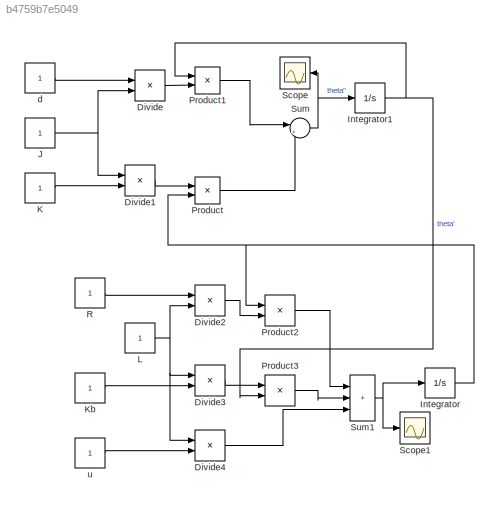
MODEL slx_b4759b7e5049
KIND model
CONFIG AbsTol = auto
CONFIG EnableMultiTasking = off
CONFIG FixedStep = auto
CONFIG MaxStep = auto
CONFIG MinStep = auto
CONFIG RelTol = 1e-3
CONFIG SampleTimeConstraint = Unconstrained
CONFIG SolverName = VariableStepAuto
CONFIG StartTime = 0.0
CONFIG StopTime = 10.0
BLOCK [Product] Divide
  Inputs = */
  Ports = [2, 1]
BLOCK [Product] Divide1
  Inputs = /*
  Ports = [2, 1]
BLOCK [Product] Divide2
  Inputs = */
  Ports = [2, 1]
BLOCK [Product] Divide3
  Inputs = /*
  Ports = [2, 1]
BLOCK [Product] Divide4
  Inputs = /*
  Ports = [2, 1]
BLOCK [Integrator] Integrator
  Ports = [1, 1]
BLOCK [Integrator] Integrator1
  Ports = [1, 1]
BLOCK [Constant] J
BLOCK [Constant] K
BLOCK [Constant] Kb
BLOCK [Constant] L
BLOCK [Product] Product
  Ports = [2, 1]
BLOCK [Product] Product1
  Ports = [2, 1]
BLOCK [Product] Product2
  Ports = [2, 1]
BLOCK [Product] Product3
  Ports = [2, 1]
BLOCK [Constant] R
BLOCK [Scope] Scope
  Floating = off
  NumInputPorts = 1
  Ports = [1]
  ScopeSpecificationString = Simulink.scopes.TimeScopeBlockCfg('CurrentConfiguration', extmgr.ConfigurationSet(extmgr.Configuration('Core','General UI',true),extmgr.Configuration('Core','Source UI',true),extmgr.Configuration('Sources','WiredSimulink',true),extmgr.Configuration('Visuals','Time Domain',true,'SerializedDisplays',{struct('MinYLimReal','-30323618.49334','MaxYLimReal','272912566.4401','YLabelReal','','MinYLimMag','...<+1380ch>
BLOCK [Scope] Scope1
  Floating = off
  NumInputPorts = 1
  Ports = [1]
  ScopeSpecificationString = Simulink.scopes.TimeScopeBlockCfg('CurrentConfiguration', extmgr.ConfigurationSet(extmgr.Configuration('Core','General UI',true),extmgr.Configuration('Core','Source UI',true),extmgr.Configuration('Sources','WiredSimulink',true,'DataLoggingVariableName','ScopeData1'),extmgr.Configuration('Visuals','Time Domain',true,'SerializedDisplays',{struct('MinYLimReal','-30323617.49334','MaxYLimReal','2729125...<+1417ch>
BLOCK [Sum] Sum
  Inputs = |++
  Ports = [2, 1]
BLOCK [Sum] Sum1
  IconShape = rectangular
  Inputs = |+++
  Ports = [3, 1]
BLOCK [Constant] d
BLOCK [Constant] u
LINE Divide1:1 -> Product:1
LINE Divide2:1 -> Product2:2
LINE Divide3:1 -> Product3:1
LINE Divide4:1 -> Sum1:3
LINE Divide:1 -> Product1:2
NET Integrator1:1 -> Product1:1, Product3:2
NET Integrator:1 -> Product2:1, Product:2
NET J:1 -> Divide1:1, Divide:2
LINE K:1 -> Divide1:2
LINE Kb:1 -> Divide3:2
NET L:1 -> Divide2:2, Divide3:1, Divide4:1
LINE Product1:1 -> Sum:1
LINE Product2:1 -> Sum1:1
LINE Product3:1 -> Sum1:2
LINE Product:1 -> Sum:2
LINE R:1 -> Divide2:1
NET Sum1:1 -> Integrator:1, Scope1:1
NET Sum:1 -> Integrator1:1, Scope:1
LINE d:1 -> Divide:1
LINE u:1 -> Divide4:2
note: NET lines group one-source signal fan-out (src -> all destinations, sorted); 1:1 wires keep LINE
